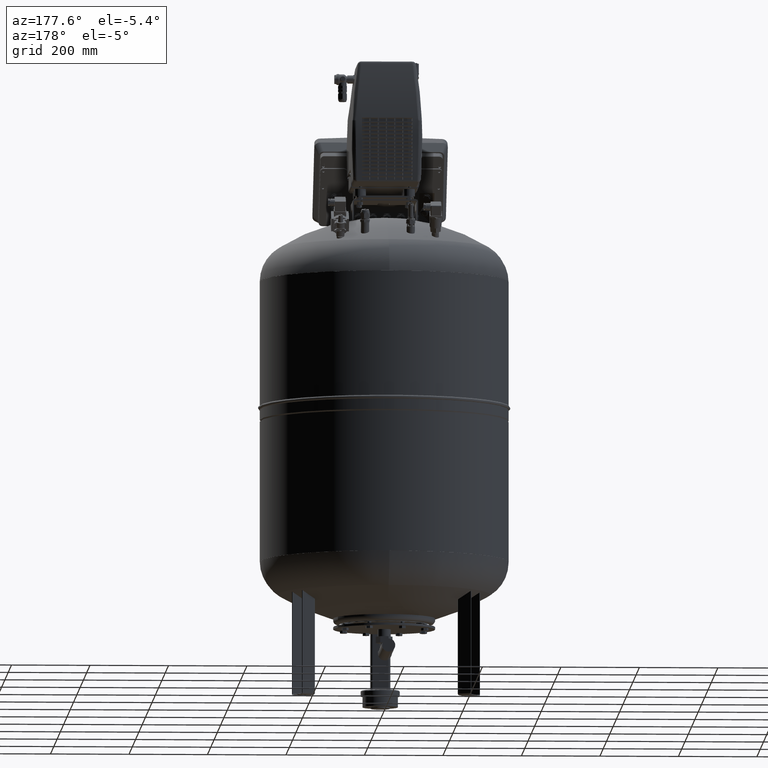
[diagram: clean part render]
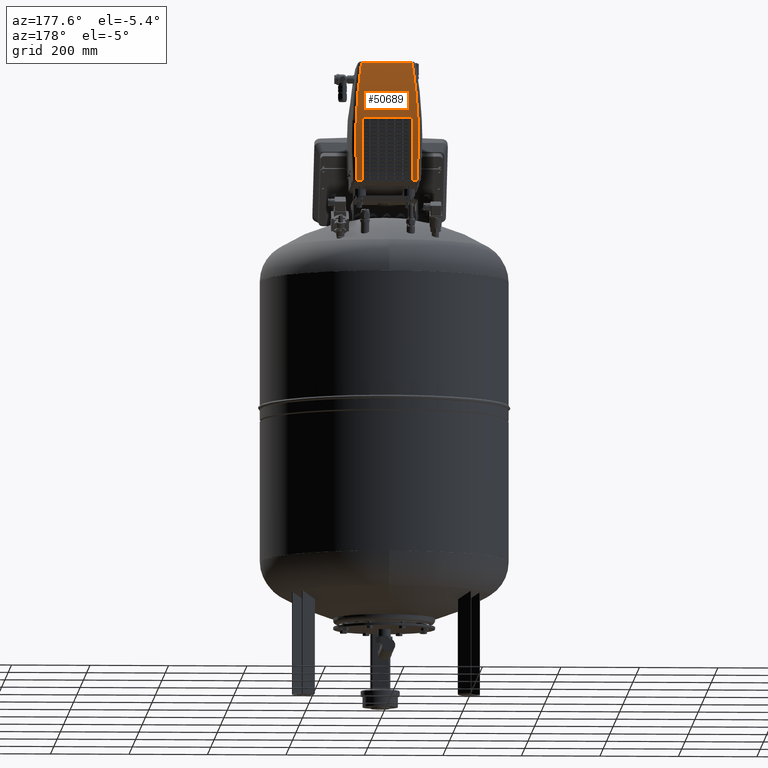
[diagram: same view with one face highlighted and labeled with its STEP entity id]
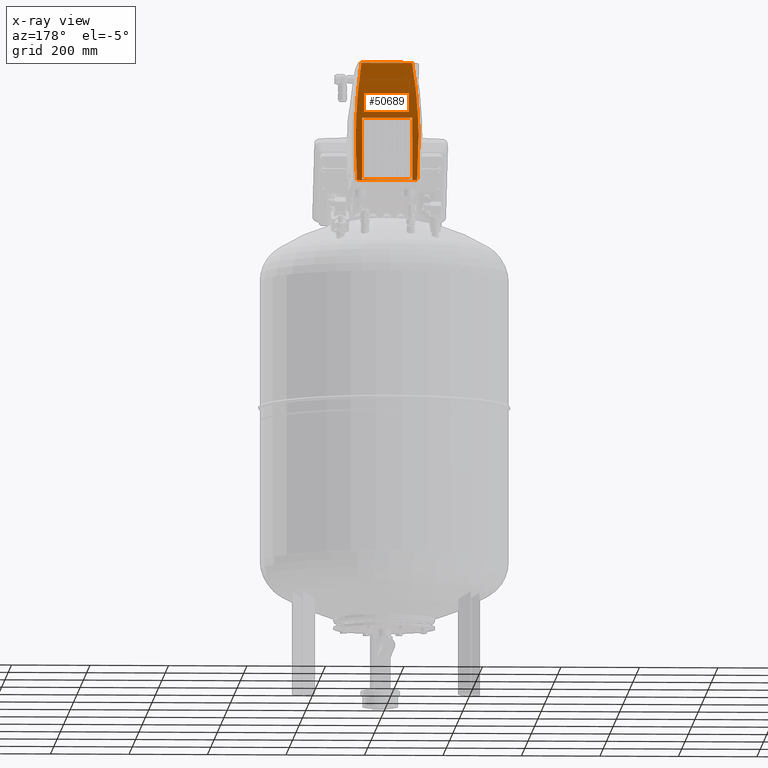
[diagram: x-ray of the same camera — body ghosted, the highlighted face saturated]
A machine part, auxiliary view. The second image highlights one B-rep face of the part: STEP entity #50689.
The next image is the same camera in x-ray: the body ghosted, the highlighted face saturated — about 0% of this face is hidden behind the body in this view.
In plain terms, the highlighted cylindrical surface (partial cylindrical patch) has radius 1111.2 mm, axis along (-1, 0, -0).
Its self-contained STEP definition (entity closure, byte-faithful):
#50540=AXIS2_PLACEMENT_3D('Cylinder Axis2P3D',#50537,#50538,#50539) ;
#50625=AXIS2_PLACEMENT_3D('Circle Axis2P3D',#50623,#50624,$) ;
#50634=AXIS2_PLACEMENT_3D('Circle Axis2P3D',#50632,#50633,$) ;
#50641=AXIS2_PLACEMENT_3D('Circle Axis2P3D',#50639,#50640,$) ;
#50655=AXIS2_PLACEMENT_3D('Circle Axis2P3D',#50653,#50654,$) ;
#50662=AXIS2_PLACEMENT_3D('Circle Axis2P3D',#50660,#50661,$) ;
#50669=AXIS2_PLACEMENT_3D('Circle Axis2P3D',#50667,#50668,$) ;
#48288=CARTESIAN_POINT('Vertex',(76.9808618662,177.120670803,1321.01672672)) ;
#48337=CARTESIAN_POINT('Vertex',(76.3849998023,176.41034305,1312.56236953)) ;
#48341=CARTESIAN_POINT('Control Point',(76.9808618662,177.120670803,1321.01672672)) ;
#48342=CARTESIAN_POINT('Control Point',(76.7910627948,176.894549767,1318.19641095)) ;
#48343=CARTESIAN_POINT('Control Point',(76.5924425639,176.657780218,1315.37832523)) ;
#48344=CARTESIAN_POINT('Control Point',(76.3850275265,176.410385626,1312.56247278)) ;
#48409=CARTESIAN_POINT('Vertex',(78.8917316189,179.289373879,1465.293512)) ;
#48413=CARTESIAN_POINT('Control Point',(78.8917316189,179.289373879,1465.293512)) ;
#48414=CARTESIAN_POINT('Control Point',(79.2717659655,179.755766175,1455.96392686)) ;
#48415=CARTESIAN_POINT('Control Point',(80.0047184659,180.660835712,1431.73740662)) ;
#48416=CARTESIAN_POINT('Control Point',(80.1520588079,180.882637343,1383.54797734)) ;
#48417=CARTESIAN_POINT('Control Point',(78.5784141543,179.023947645,1344.75552515)) ;
#48418=CARTESIAN_POINT('Control Point',(76.9808618662,177.120670803,1321.01672672)) ;
#48471=CARTESIAN_POINT('Vertex',(65.1597462807,162.575726331,1609.56132088)) ;
#48475=CARTESIAN_POINT('Control Point',(65.1597462807,162.575726331,1609.56132088)) ;
#48476=CARTESIAN_POINT('Control Point',(69.5351691094,167.898089554,1580.43472384)) ;
#48477=CARTESIAN_POINT('Control Point',(75.1391177002,174.706179473,1532.43404194)) ;
#48478=CARTESIAN_POINT('Control Point',(78.1316629257,178.356589288,1483.95268227)) ;
#48479=CARTESIAN_POINT('Control Point',(78.8917316189,179.289373879,1465.293512)) ;
#48518=CARTESIAN_POINT('Control Point',(64.4979595358,161.77066984,1613.91786128)) ;
#48519=CARTESIAN_POINT('Control Point',(64.7208543277,162.041834301,1612.46665615)) ;
#48520=CARTESIAN_POINT('Control Point',(64.9414524732,162.31018881,1611.01447319)) ;
#48521=CARTESIAN_POINT('Control Point',(65.1597462807,162.575726331,1609.56132088)) ;
#48522=CARTESIAN_POINT('Vertex',(64.4978674334,161.770557486,1613.91836302)) ;
#50537=CARTESIAN_POINT('Axis2P3D Location',(-2.01638E-013,-930.525123815,1409.82136498)) ;
#50543=CARTESIAN_POINT('Control Point',(-77.3277836996,177.53403146,1326.33275252)) ;
#50544=CARTESIAN_POINT('Control Point',(-77.0369204703,177.187850481,1321.73824564)) ;
#50545=CARTESIAN_POINT('Control Point',(-76.72252541,176.813244686,1317.1479263)) ;
#50546=CARTESIAN_POINT('Control Point',(-76.3847675864,176.410353209,1312.56248515)) ;
#50547=CARTESIAN_POINT('Vertex',(-77.3280007097,177.534074583,1326.33273553)) ;
#50549=CARTESIAN_POINT('Vertex',(-76.3849998021,176.41034305,1312.56236953)) ;
#50553=CARTESIAN_POINT('Control Point',(-79.9423825853,180.593545965,1423.26538465)) ;
#50554=CARTESIAN_POINT('Control Point',(-80.1224590227,180.828284816,1403.8647347)) ;
#50555=CARTESIAN_POINT('Control Point',(-79.9498347414,180.63995732,1384.44715337)) ;
#50556=CARTESIAN_POINT('Control Point',(-79.4264279064,180.026038069,1365.0191251)) ;
#50557=CARTESIAN_POINT('Control Point',(-78.5503479475,178.989108782,1345.64450894)) ;
#50558=CARTESIAN_POINT('Control Point',(-77.3277836996,177.53403146,1326.33275252)) ;
#50559=CARTESIAN_POINT('Vertex',(-79.9424135461,180.593589506,1423.26538547)) ;
#50563=CARTESIAN_POINT('Control Point',(-78.9142461212,179.316996973,1464.73863844)) ;
#50564=CARTESIAN_POINT('Control Point',(-79.4707448049,180.000076487,1450.93404894)) ;
#50565=CARTESIAN_POINT('Control Point',(-79.8139092815,180.42607444,1437.10653805)) ;
#50566=CARTESIAN_POINT('Control Point',(-79.9423825853,180.593545965,1423.26538465)) ;
#50567=CARTESIAN_POINT('Vertex',(-78.9142856048,179.317043913,1464.73864235)) ;
#50571=CARTESIAN_POINT('Control Point',(-78.6538798735,178.997710876,1470.85020488)) ;
#50572=CARTESIAN_POINT('Control Point',(-78.7453109636,179.109738047,1468.8135169)) ;
#50573=CARTESIAN_POINT('Control Point',(-78.832101663,179.216167989,1466.77632614)) ;
#50574=CARTESIAN_POINT('Control Point',(-78.9142461212,179.316996973,1464.73863844)) ;
#50575=CARTESIAN_POINT('Vertex',(-78.6539627177,178.997800662,1470.85021354)) ;
#50579=CARTESIAN_POINT('Control Point',(-65.5769123781,163.083296439,1606.76314101)) ;
#50580=CARTESIAN_POINT('Control Point',(-68.4949345883,166.63240191,1587.05512525)) ;
#50581=CARTESIAN_POINT('Control Point',(-71.0593468834,169.749467409,1567.20102573)) ;
#50582=CARTESIAN_POINT('Control Point',(-73.2617814589,172.426354063,1547.20085398)) ;
#50583=CARTESIAN_POINT('Control Point',(-75.7437369323,175.445385147,1519.94846798)) ;
#50584=CARTESIAN_POINT('Control Point',(-77.5302086351,177.623776018,1492.58909269)) ;
#50585=CARTESIAN_POINT('Control Point',(-77.953812442,178.140927308,1485.34689763)) ;
#50586=CARTESIAN_POINT('Control Point',(-78.3284059193,178.598919542,1478.10035238)) ;
#50587=CARTESIAN_POINT('Control Point',(-78.6538798735,178.997710876,1470.85020488)) ;
#50588=CARTESIAN_POINT('Vertex',(-65.5770186795,163.083294438,1606.76315639)) ;
#50592=CARTESIAN_POINT('Control Point',(-64.4977121782,161.770576395,1613.91826182)) ;
#50593=CARTESIAN_POINT('Control Point',(-64.8636530869,162.215746119,1611.53578084)) ;
#50594=CARTESIAN_POINT('Control Point',(-65.223396549,162.653325427,1609.15074982)) ;
#50595=CARTESIAN_POINT('Control Point',(-65.5769123781,163.083296439,1606.76314101)) ;
#50596=CARTESIAN_POINT('Vertex',(-64.4978674337,161.770557486,1613.91836302)) ;
#50599=CARTESIAN_POINT('Line Origine',(0.,161.770557486,1613.91836302)) ;
#50604=CARTESIAN_POINT('Line Origine',(0.,176.41034305,1312.56236953)) ;
#50623=CARTESIAN_POINT('Axis2P3D Location',(-64.,-930.525123815,1409.82136498)) ;
#50627=CARTESIAN_POINT('Vertex',(-64.,178.933869274,1472.)) ;
#50629=CARTESIAN_POINT('Vertex',(-64.,177.41034305,1324.70708144)) ;
#50632=CARTESIAN_POINT('Axis2P3D Location',(-64.,-930.525123815,1409.82136498)) ;
#50636=CARTESIAN_POINT('Vertex',(-64.,177.228717638,1322.375)) ;
#50639=CARTESIAN_POINT('Axis2P3D Location',(-64.,-930.525123815,1409.82136498)) ;
#50643=CARTESIAN_POINT('Vertex',(-64.,176.535717338,1314.)) ;
#50646=CARTESIAN_POINT('Line Origine',(0.,176.535717338,1314.)) ;
#50650=CARTESIAN_POINT('Vertex',(64.,176.535717338,1314.)) ;
#50653=CARTESIAN_POINT('Axis2P3D Location',(64.,-930.525123815,1409.82136498)) ;
#50657=CARTESIAN_POINT('Vertex',(64.,177.228717638,1322.375)) ;
#50660=CARTESIAN_POINT('Axis2P3D Location',(64.,-930.525123815,1409.82136498)) ;
#50664=CARTESIAN_POINT('Vertex',(64.,177.41034305,1324.70708144)) ;
#50667=CARTESIAN_POINT('Axis2P3D Location',(64.,-930.525123815,1409.82136498)) ;
#50671=CARTESIAN_POINT('Vertex',(64.,178.933869274,1472.)) ;
#50674=CARTESIAN_POINT('Line Origine',(0.,178.933869274,1472.)) ;
#50538=DIRECTION('Axis2P3D Direction',(-1.,1.83697055414E-016,-1.83696989646E-016)) ;
#50539=DIRECTION('Axis2P3D XDirection',(1.468318E-016,0.982987474173,0.183672604433)) ;
#50600=DIRECTION('Vector Direction',(-1.,1.83695192391E-016,-1.83695192391E-016)) ;
#50605=DIRECTION('Vector Direction',(-1.,1.83695192391E-016,-1.83695192391E-016)) ;
#50624=DIRECTION('Axis2P3D Direction',(-1.,1.83697055414E-016,-1.83696989646E-016)) ;
#50633=DIRECTION('Axis2P3D Direction',(-1.,1.83697055414E-016,-1.83696989646E-016)) ;
#50640=DIRECTION('Axis2P3D Direction',(-1.,1.83697055414E-016,-1.83696989646E-016)) ;
#50647=DIRECTION('Vector Direction',(-1.,1.83695192391E-016,-1.83695192391E-016)) ;
#50654=DIRECTION('Axis2P3D Direction',(-1.,1.83697055414E-016,-1.83696989646E-016)) ;
#50661=DIRECTION('Axis2P3D Direction',(-1.,1.83697055414E-016,-1.83696989646E-016)) ;
#50668=DIRECTION('Axis2P3D Direction',(-1.,1.83697055414E-016,-1.83696989646E-016)) ;
#50675=DIRECTION('Vector Direction',(-1.,1.83695192391E-016,-1.83695192391E-016)) ;
#50601=VECTOR('Line Direction',#50600,1.) ;
#50606=VECTOR('Line Direction',#50605,1.) ;
#50648=VECTOR('Line Direction',#50647,1.) ;
#50676=VECTOR('Line Direction',#50675,1.) ;
#50610=ORIENTED_EDGE('',*,*,#50551,.F.) ;
#50611=ORIENTED_EDGE('',*,*,#50561,.F.) ;
#50612=ORIENTED_EDGE('',*,*,#50569,.F.) ;
#50613=ORIENTED_EDGE('',*,*,#50577,.F.) ;
#50614=ORIENTED_EDGE('',*,*,#50590,.F.) ;
#50615=ORIENTED_EDGE('',*,*,#50598,.F.) ;
#50616=ORIENTED_EDGE('',*,*,#50603,.T.) ;
#50617=ORIENTED_EDGE('',*,*,#48524,.F.) ;
#50618=ORIENTED_EDGE('',*,*,#48480,.F.) ;
#50619=ORIENTED_EDGE('',*,*,#48419,.F.) ;
#50620=ORIENTED_EDGE('',*,*,#48345,.F.) ;
#50621=ORIENTED_EDGE('',*,*,#50608,.F.) ;
#50680=ORIENTED_EDGE('',*,*,#50631,.T.) ;
#50681=ORIENTED_EDGE('',*,*,#50638,.T.) ;
#50682=ORIENTED_EDGE('',*,*,#50645,.T.) ;
#50683=ORIENTED_EDGE('',*,*,#50652,.T.) ;
#50684=ORIENTED_EDGE('',*,*,#50659,.T.) ;
#50685=ORIENTED_EDGE('',*,*,#50666,.T.) ;
#50686=ORIENTED_EDGE('',*,*,#50673,.T.) ;
#50687=ORIENTED_EDGE('',*,*,#50678,.T.) ;
#50688=FACE_BOUND('',#50679,.T.) ;
#50689=ADVANCED_FACE('2FC',(#50622,#50688),#50541,.T.) ;
#48340=B_SPLINE_CURVE_WITH_KNOTS('',3,(#48341,#48342,#48343,#48344),.UNSPECIFIED.,.F.,.U.,(4,4),(366.84035302,375.35100967),.UNSPECIFIED.) ;
#48412=B_SPLINE_CURVE_WITH_KNOTS('',3,(#48413,#48414,#48415,#48416,#48417,#48418),.UNSPECIFIED.,.F.,.U.,(4,1,1,4),(222.320942705,250.433798849,295.205550453,366.84035302),.UNSPECIFIED.) ;
#48474=B_SPLINE_CURVE_WITH_KNOTS('',3,(#48475,#48476,#48477,#48478,#48479),.UNSPECIFIED.,.F.,.U.,(4,1,4),(76.1340907586,166.095230418,222.320942705),.UNSPECIFIED.) ;
#48517=B_SPLINE_CURVE_WITH_KNOTS('',3,(#48518,#48519,#48520,#48521),.UNSPECIFIED.,.F.,.U.,(4,4),(71.6458480268,76.1340907586),.UNSPECIFIED.) ;
#50542=B_SPLINE_CURVE_WITH_KNOTS('',3,(#50543,#50544,#50545,#50546),.UNSPECIFIED.,.F.,.U.,(4,4),(137.231003405,156.820380183),.UNSPECIFIED.) ;
#50552=B_SPLINE_CURVE_WITH_KNOTS('',5,(#50553,#50554,#50555,#50556,#50557,#50558),.UNSPECIFIED.,.F.,.U.,(6,6),(0.,137.231003405),.UNSPECIFIED.) ;
#50562=B_SPLINE_CURVE_WITH_KNOTS('',3,(#50563,#50564,#50565,#50566),.UNSPECIFIED.,.F.,.U.,(4,4),(8.6710885062,67.4145442225),.UNSPECIFIED.) ;
#50570=B_SPLINE_CURVE_WITH_KNOTS('',3,(#50571,#50572,#50573,#50574),.UNSPECIFIED.,.F.,.U.,(4,4),(0.,8.6710885062),.UNSPECIFIED.) ;
#50578=B_SPLINE_CURVE_WITH_KNOTS('',5,(#50579,#50580,#50581,#50582,#50583,#50584,#50585,#50586,#50587),.UNSPECIFIED.,.F.,.U.,(6,3,6),(10.4006733655,153.484298803,204.929481131),.UNSPECIFIED.) ;
#50591=B_SPLINE_CURVE_WITH_KNOTS('',3,(#50592,#50593,#50594,#50595),.UNSPECIFIED.,.F.,.U.,(4,4),(0.,10.4006733655),.UNSPECIFIED.) ;
#50626=CIRCLE('generated circle',#50625,1111.2) ;
#50635=CIRCLE('generated circle',#50634,1111.2) ;
#50642=CIRCLE('generated circle',#50641,1111.2) ;
#50656=CIRCLE('generated circle',#50655,1111.2) ;
#50663=CIRCLE('generated circle',#50662,1111.2) ;
#50670=CIRCLE('generated circle',#50669,1111.2) ;
#50541=CYLINDRICAL_SURFACE('generated cylinder',#50540,1111.2) ;
#48345=EDGE_CURVE('',#48338,#48289,#48340,.F.) ;
#48419=EDGE_CURVE('',#48289,#48410,#48412,.F.) ;
#48480=EDGE_CURVE('',#48410,#48472,#48474,.F.) ;
#48524=EDGE_CURVE('',#48472,#48523,#48517,.F.) ;
#50551=EDGE_CURVE('',#50548,#50550,#50542,.T.) ;
#50561=EDGE_CURVE('',#50560,#50548,#50552,.T.) ;
#50569=EDGE_CURVE('',#50568,#50560,#50562,.T.) ;
#50577=EDGE_CURVE('',#50576,#50568,#50570,.T.) ;
#50590=EDGE_CURVE('',#50589,#50576,#50578,.T.) ;
#50598=EDGE_CURVE('',#50597,#50589,#50591,.T.) ;
#50603=EDGE_CURVE('',#50597,#48523,#50602,.F.) ;
#50608=EDGE_CURVE('',#50550,#48338,#50607,.F.) ;
#50631=EDGE_CURVE('',#50628,#50630,#50626,.T.) ;
#50638=EDGE_CURVE('',#50630,#50637,#50635,.T.) ;
#50645=EDGE_CURVE('',#50637,#50644,#50642,.T.) ;
#50652=EDGE_CURVE('',#50644,#50651,#50649,.F.) ;
#50659=EDGE_CURVE('',#50651,#50658,#50656,.F.) ;
#50666=EDGE_CURVE('',#50658,#50665,#50663,.F.) ;
#50673=EDGE_CURVE('',#50665,#50672,#50670,.F.) ;
#50678=EDGE_CURVE('',#50672,#50628,#50677,.T.) ;
#50609=EDGE_LOOP('',(#50610,#50611,#50612,#50613,#50614,#50615,#50616,#50617,#50618,#50619,#50620,#50621)) ;
#50679=EDGE_LOOP('',(#50680,#50681,#50682,#50683,#50684,#50685,#50686,#50687)) ;
#50622=FACE_OUTER_BOUND('',#50609,.T.) ;
#50602=LINE('Line',#50599,#50601) ;
#50607=LINE('Line',#50604,#50606) ;
#50649=LINE('Line',#50646,#50648) ;
#50677=LINE('Line',#50674,#50676) ;
#48289=VERTEX_POINT('',#48288) ;
#48338=VERTEX_POINT('',#48337) ;
#48410=VERTEX_POINT('',#48409) ;
#48472=VERTEX_POINT('',#48471) ;
#48523=VERTEX_POINT('',#48522) ;
#50548=VERTEX_POINT('',#50547) ;
#50550=VERTEX_POINT('',#50549) ;
#50560=VERTEX_POINT('',#50559) ;
#50568=VERTEX_POINT('',#50567) ;
#50576=VERTEX_POINT('',#50575) ;
#50589=VERTEX_POINT('',#50588) ;
#50597=VERTEX_POINT('',#50596) ;
#50628=VERTEX_POINT('',#50627) ;
#50630=VERTEX_POINT('',#50629) ;
#50637=VERTEX_POINT('',#50636) ;
#50644=VERTEX_POINT('',#50643) ;
#50651=VERTEX_POINT('',#50650) ;
#50658=VERTEX_POINT('',#50657) ;
#50665=VERTEX_POINT('',#50664) ;
#50672=VERTEX_POINT('',#50671) ;